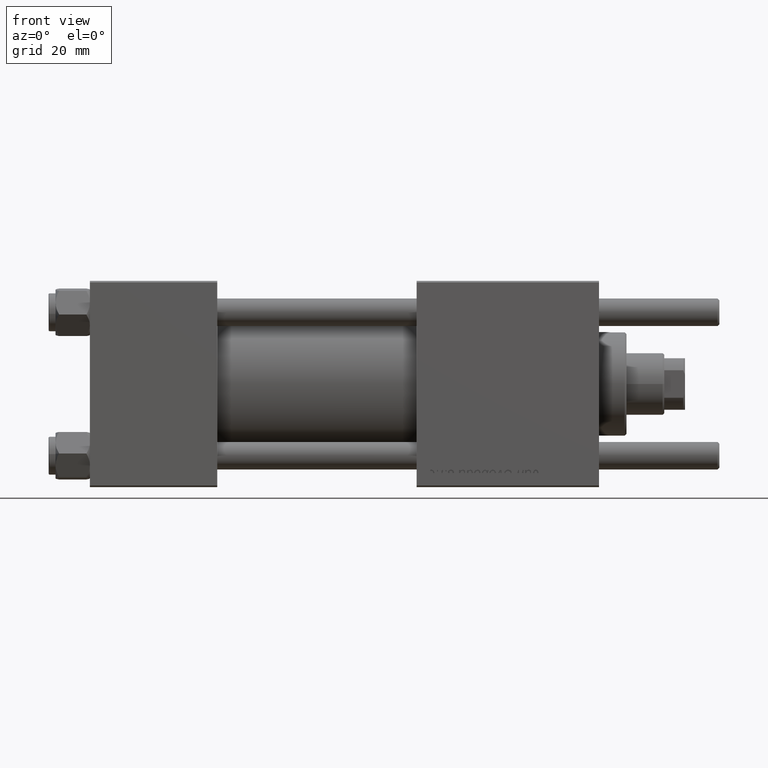
[diagram: clean part render]
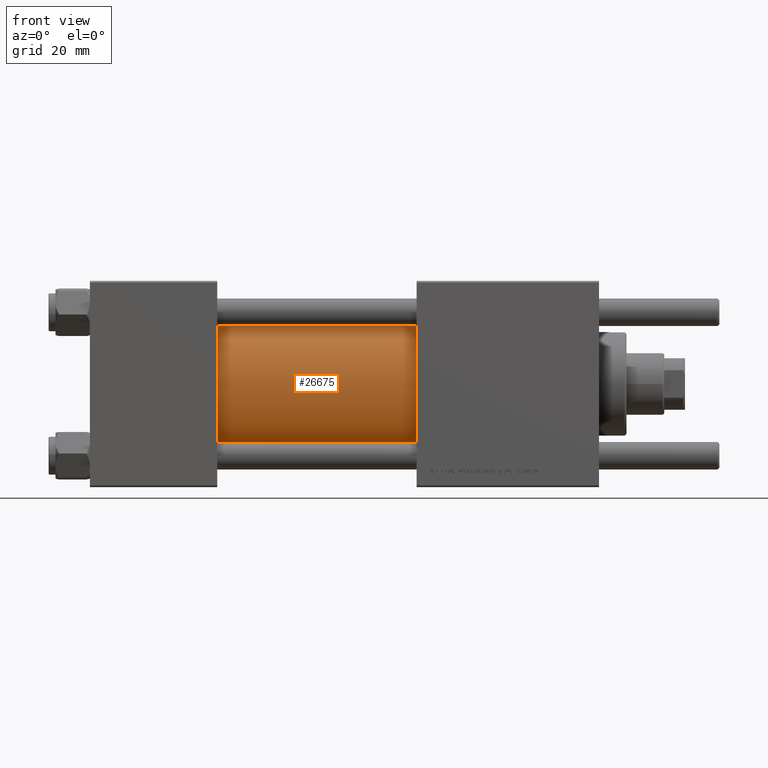
[diagram: same view with one face highlighted and labeled with its STEP entity id]
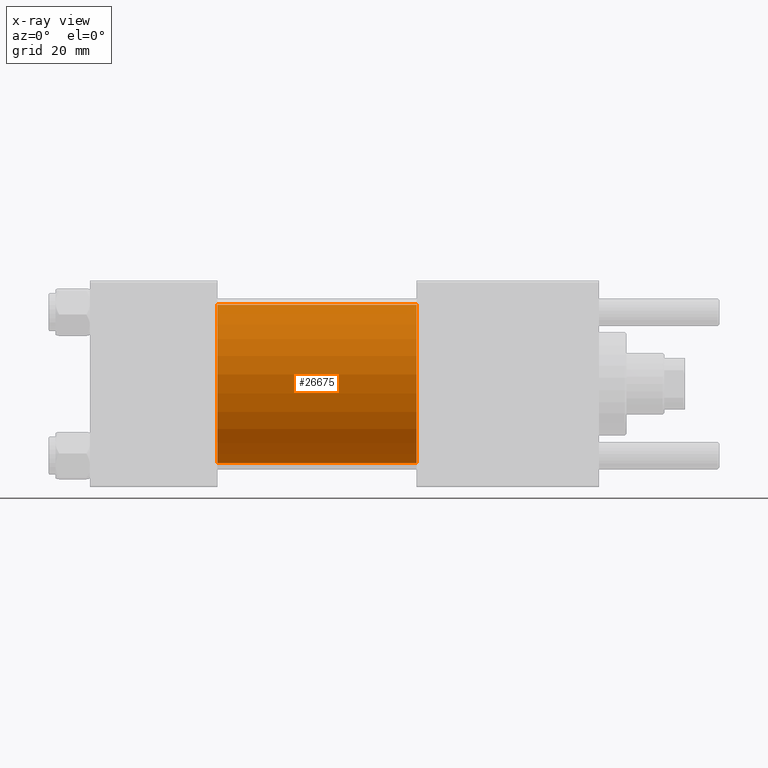
[diagram: x-ray of the same camera — body ghosted, the highlighted face saturated]
A machine part, front view. The second image highlights one B-rep face of the part: STEP entity #26675.
The next image is the same camera in x-ray: the body ghosted, the highlighted face saturated — about 1% of this face is hidden behind the body in this view.
In plain terms, the highlighted cylindrical surface (partial cylindrical patch) has radius 23 mm, axis along (-1, -0, -0).
Its self-contained STEP definition (entity closure, byte-faithful):
#1073 = DIRECTION ( 'NONE',  ( 1.000000000000000000, 0.000000000000000000, 0.000000000000000000 ) ) ;
#2522 = FACE_OUTER_BOUND ( 'NONE', #9984, .T. ) ;
#3956 = CARTESIAN_POINT ( 'NONE',  ( 95.00000000000000000, -2.602085213965210642E-15, 0.000000000000000000 ) ) ;
#4792 = VECTOR ( 'NONE', #26915, 1000.000000000000000 ) ;
#5426 = CIRCLE ( 'NONE', #35754, 23.00000000000000000 ) ;
#7122 = DIRECTION ( 'NONE',  ( -1.000000000000000000, -0.000000000000000000, -0.000000000000000000 ) ) ;
#7468 = ORIENTED_EDGE ( 'NONE', *, *, #16342, .T. ) ;
#9457 = DIRECTION ( 'NONE',  ( -1.000000000000000000, -0.000000000000000000, -0.000000000000000000 ) ) ;
#9811 = ORIENTED_EDGE ( 'NONE', *, *, #44533, .F. ) ;
#9984 = EDGE_LOOP ( 'NONE', ( #40327, #9811, #18588, #7468 ) ) ;
#11735 = DIRECTION ( 'NONE',  ( 0.000000000000000000, 0.000000000000000000, 1.000000000000000000 ) ) ;
#13098 = EDGE_CURVE ( 'NONE', #20404, #41729, #53607, .T. ) ;
#16342 = EDGE_CURVE ( 'NONE', #41729, #21328, #30584, .T. ) ;
#16634 = DIRECTION ( 'NONE',  ( 0.000000000000000000, 0.000000000000000000, 1.000000000000000000 ) ) ;
#17978 = CARTESIAN_POINT ( 'NONE',  ( 95.00000000000000000, -2.602085213965210642E-15, 23.00000000000000000 ) ) ;
#18588 = ORIENTED_EDGE ( 'NONE', *, *, #13098, .T. ) ;
#18796 = AXIS2_PLACEMENT_3D ( 'NONE', #41910, #7122, #11735 ) ;
#19029 = VECTOR ( 'NONE', #9457, 1000.000000000000000 ) ;
#20404 = VERTEX_POINT ( 'NONE', #17978 ) ;
#21328 = VERTEX_POINT ( 'NONE', #55073 ) ;
#22402 = LINE ( 'NONE', #49094, #19029 ) ;
#24675 = DIRECTION ( 'NONE',  ( 1.000000000000000000, -0.000000000000000000, 0.000000000000000000 ) ) ;
#26675 = ADVANCED_FACE ( 'NONE', ( #2522 ), #51663, .T. ) ;
#26915 = DIRECTION ( 'NONE',  ( -1.000000000000000000, -0.000000000000000000, -0.000000000000000000 ) ) ;
#28978 = CARTESIAN_POINT ( 'NONE',  ( 37.00000000000000000, -2.602085213965210642E-15, 0.000000000000000000 ) ) ;
#30584 = CIRCLE ( 'NONE', #45251, 23.00000000000000000 ) ;
#31234 = CARTESIAN_POINT ( 'NONE',  ( 95.00000000000000000, -2.602085213965210642E-15, 23.00000000000000000 ) ) ;
#34256 = EDGE_CURVE ( 'NONE', #51037, #21328, #22402, .T. ) ;
#35754 = AXIS2_PLACEMENT_3D ( 'NONE', #3956, #1073, #50171 ) ;
#40327 = ORIENTED_EDGE ( 'NONE', *, *, #34256, .F. ) ;
#41729 = VERTEX_POINT ( 'NONE', #51585 ) ;
#41910 = CARTESIAN_POINT ( 'NONE',  ( 95.00000000000000000, -2.602085213965210642E-15, 0.000000000000000000 ) ) ;
#44533 = EDGE_CURVE ( 'NONE', #20404, #51037, #5426, .T. ) ;
#45251 = AXIS2_PLACEMENT_3D ( 'NONE', #28978, #24675, #16634 ) ;
#47961 = CARTESIAN_POINT ( 'NONE',  ( 95.00000000000000000, 2.146024240737012665E-16, -23.00000000000000000 ) ) ;
#49094 = CARTESIAN_POINT ( 'NONE',  ( 95.00000000000000000, 2.146024240737012665E-16, -23.00000000000000000 ) ) ;
#50171 = DIRECTION ( 'NONE',  ( 0.000000000000000000, 0.000000000000000000, -1.000000000000000000 ) ) ;
#51037 = VERTEX_POINT ( 'NONE', #47961 ) ;
#51585 = CARTESIAN_POINT ( 'NONE',  ( 37.00000000000000000, -2.602085213965210642E-15, 23.00000000000000000 ) ) ;
#51663 = CYLINDRICAL_SURFACE ( 'NONE', #18796, 23.00000000000000000 ) ;
#53607 = LINE ( 'NONE', #31234, #4792 ) ;
#55073 = CARTESIAN_POINT ( 'NONE',  ( 37.00000000000000000, 2.146024240737012665E-16, -23.00000000000000000 ) ) ;